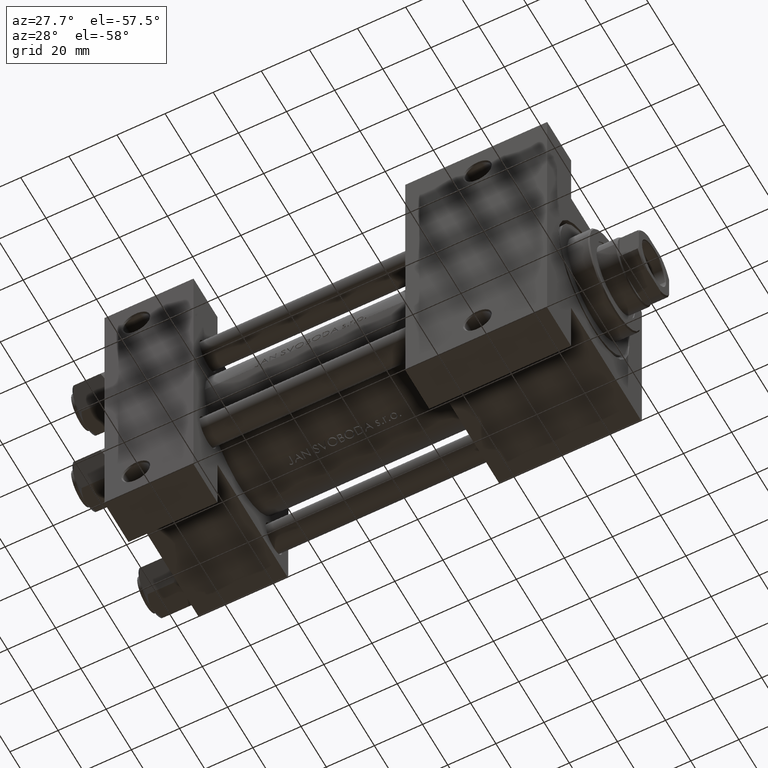
[diagram: clean part render]
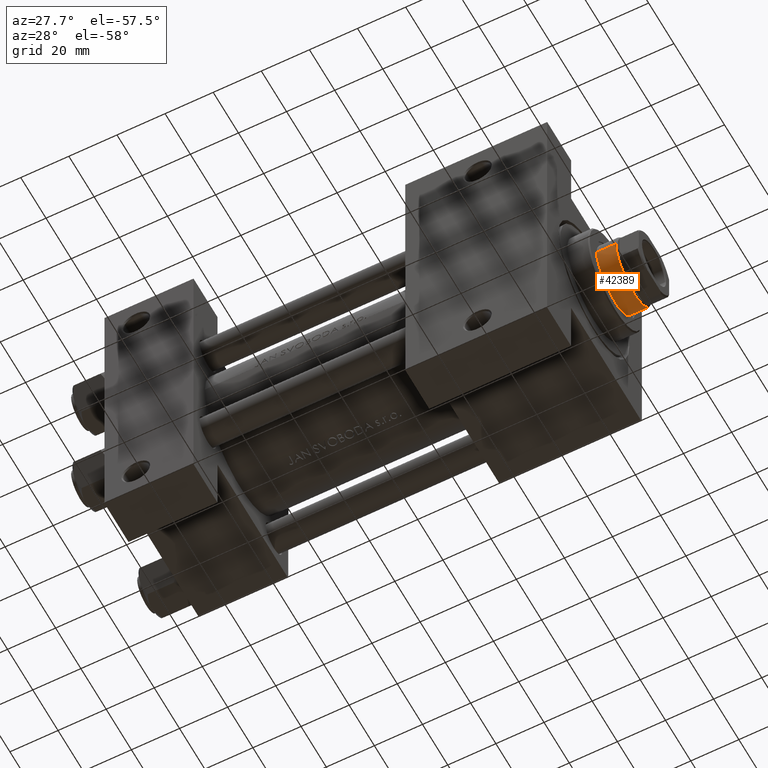
[diagram: same view with one face highlighted and labeled with its STEP entity id]
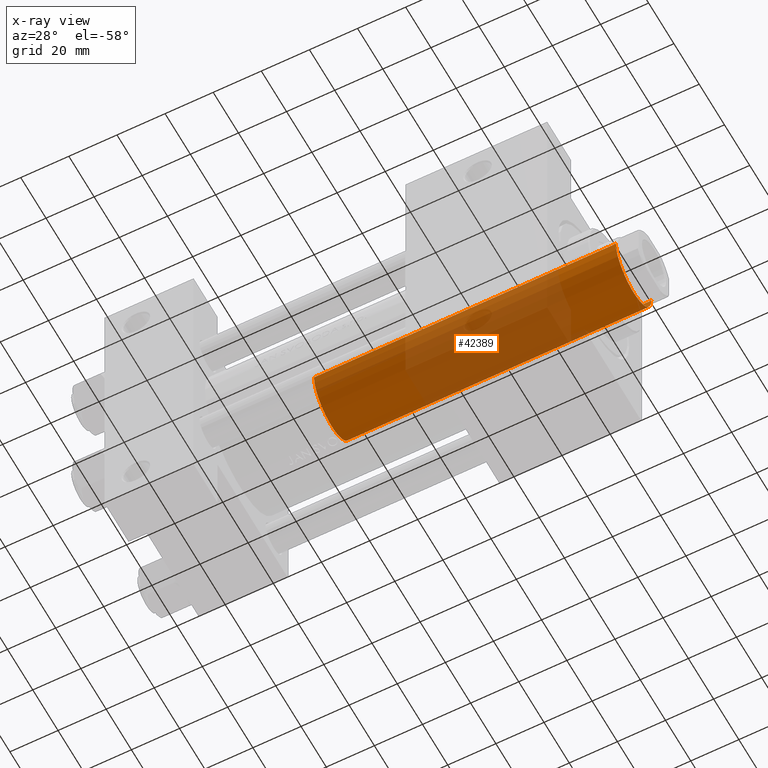
[diagram: x-ray of the same camera — body ghosted, the highlighted face saturated]
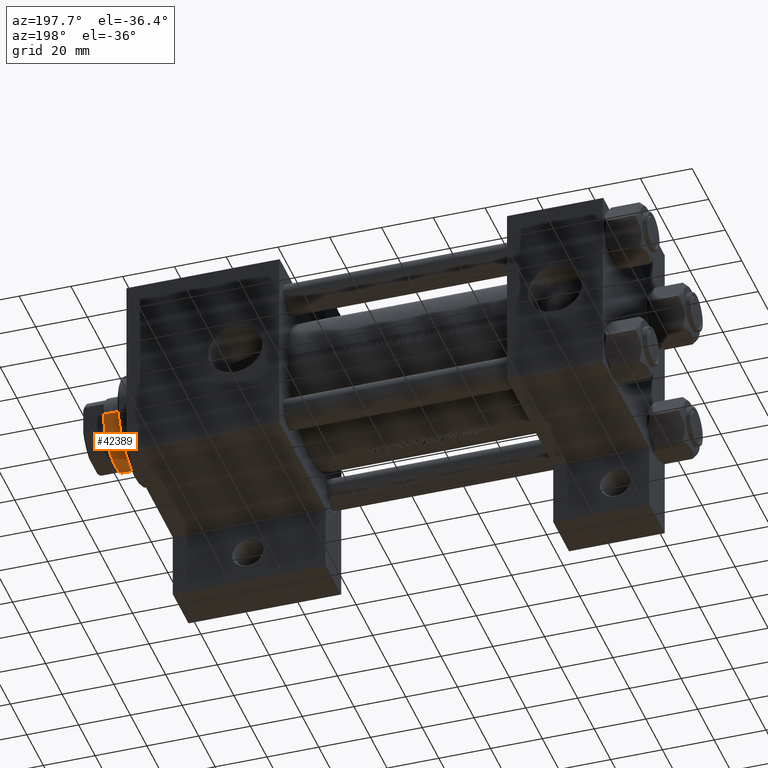
[diagram: same view with one face highlighted and labeled with its STEP entity id]
A machine part, auxiliary view. The second image highlights one B-rep face of the part: STEP entity #42389.
The next image is the same camera in x-ray: the body ghosted, the highlighted face saturated — about 58% of this face is hidden behind the body in this view.
A second angle (auxiliary view) of the same face is appended — the face is thin or edge-on in the first view.
In plain terms, the highlighted cylindrical surface (partial cylindrical patch) has radius 14 mm, axis along (-1, 0, 0).
Its self-contained STEP definition (entity closure, byte-faithful):
#1965 = CIRCLE ( 'NONE', #18087, 14.00000000000000178 ) ;
#2258 = ORIENTED_EDGE ( 'NONE', *, *, #25432, .T. ) ;
#2487 = DIRECTION ( 'NONE',  ( 0.000000000000000000, 0.000000000000000000, 1.000000000000000000 ) ) ;
#2816 = CARTESIAN_POINT ( 'NONE',  ( -14.00000000000000178, 0.000000000000000000, 164.0000000000000000 ) ) ;
#3617 = DIRECTION ( 'NONE',  ( 1.000000000000000000, 0.000000000000000000, 0.000000000000000000 ) ) ;
#3708 = VERTEX_POINT ( 'NONE', #46109 ) ;
#3754 = EDGE_LOOP ( 'NONE', ( #8778, #2258, #10366, #40748 ) ) ;
#3772 = CARTESIAN_POINT ( 'NONE',  ( -14.00000000000000178, 0.000000000000000000, 38.00000000000000000 ) ) ;
#6067 = EDGE_CURVE ( 'NONE', #34998, #3708, #34567, .T. ) ;
#7056 = DIRECTION ( 'NONE',  ( 1.000000000000000000, 0.000000000000000000, 0.000000000000000000 ) ) ;
#8778 = ORIENTED_EDGE ( 'NONE', *, *, #6067, .T. ) ;
#10366 = ORIENTED_EDGE ( 'NONE', *, *, #45289, .T. ) ;
#10661 = CARTESIAN_POINT ( 'NONE',  ( 0.000000000000000000, 0.000000000000000000, 163.5000000000000568 ) ) ;
#13742 = CARTESIAN_POINT ( 'NONE',  ( 0.000000000000000000, 0.000000000000000000, 164.0000000000000000 ) ) ;
#13766 = DIRECTION ( 'NONE',  ( -0.000000000000000000, -0.000000000000000000, -1.000000000000000000 ) ) ;
#18087 = AXIS2_PLACEMENT_3D ( 'NONE', #43534, #2487, #3617 ) ;
#21731 = VERTEX_POINT ( 'NONE', #3772 ) ;
#25298 = LINE ( 'NONE', #47413, #40222 ) ;
#25317 = DIRECTION ( 'NONE',  ( 0.000000000000000000, 0.000000000000000000, -1.000000000000000000 ) ) ;
#25432 = EDGE_CURVE ( 'NONE', #3708, #45891, #25298, .T. ) ;
#27684 = DIRECTION ( 'NONE',  ( -1.000000000000000000, 0.000000000000000000, 0.000000000000000000 ) ) ;
#28271 = CARTESIAN_POINT ( 'NONE',  ( 14.00000000000000178, 1.714505518806294835E-15, 38.00000000000000000 ) ) ;
#34113 = VECTOR ( 'NONE', #39581, 1000.000000000000000 ) ;
#34567 = CIRCLE ( 'NONE', #40721, 14.00000000000000178 ) ;
#34998 = VERTEX_POINT ( 'NONE', #40454 ) ;
#35129 = DIRECTION ( 'NONE',  ( -0.000000000000000000, -0.000000000000000000, -1.000000000000000000 ) ) ;
#35729 = LINE ( 'NONE', #2816, #34113 ) ;
#38496 = FACE_OUTER_BOUND ( 'NONE', #3754, .T. ) ;
#39581 = DIRECTION ( 'NONE',  ( -0.000000000000000000, -0.000000000000000000, -1.000000000000000000 ) ) ;
#40222 = VECTOR ( 'NONE', #13766, 1000.000000000000000 ) ;
#40454 = CARTESIAN_POINT ( 'NONE',  ( -14.00000000000000178, 0.000000000000000000, 163.5000000000000568 ) ) ;
#40721 = AXIS2_PLACEMENT_3D ( 'NONE', #10661, #25317, #7056 ) ;
#40748 = ORIENTED_EDGE ( 'NONE', *, *, #43993, .F. ) ;
#40988 = AXIS2_PLACEMENT_3D ( 'NONE', #13742, #35129, #27684 ) ;
#42389 = ADVANCED_FACE ( 'NONE', ( #38496 ), #44357, .T. ) ;
#43534 = CARTESIAN_POINT ( 'NONE',  ( 0.000000000000000000, 0.000000000000000000, 38.00000000000000000 ) ) ;
#43993 = EDGE_CURVE ( 'NONE', #34998, #21731, #35729, .T. ) ;
#44357 = CYLINDRICAL_SURFACE ( 'NONE', #40988, 14.00000000000000178 ) ;
#45289 = EDGE_CURVE ( 'NONE', #45891, #21731, #1965, .T. ) ;
#45891 = VERTEX_POINT ( 'NONE', #28271 ) ;
#46109 = CARTESIAN_POINT ( 'NONE',  ( 14.00000000000000178, 1.714505518806294835E-15, 163.5000000000000568 ) ) ;
#47413 = CARTESIAN_POINT ( 'NONE',  ( 14.00000000000000178, 1.714505518806294835E-15, 164.0000000000000000 ) ) ;